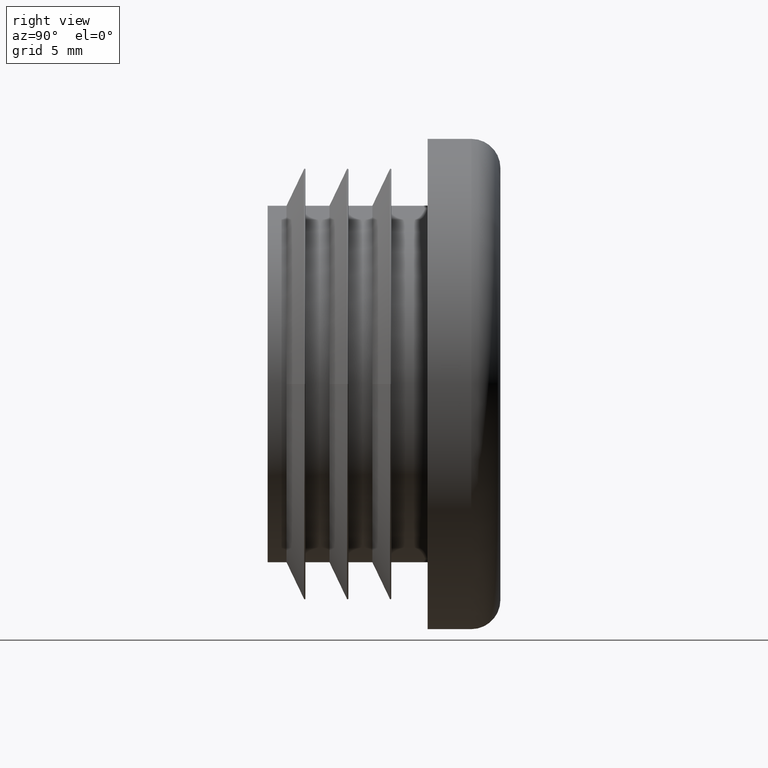
[diagram: clean part render]
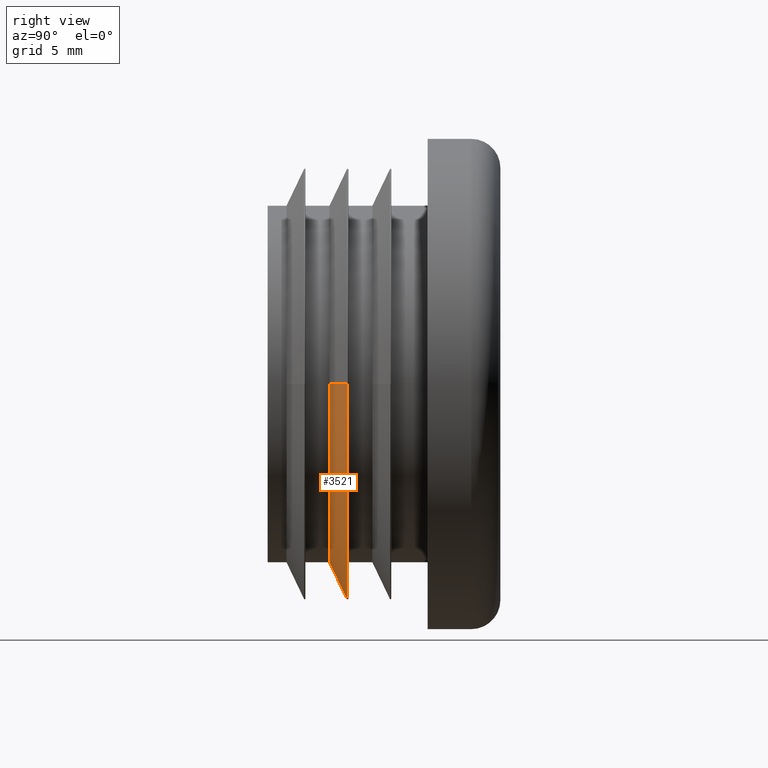
[diagram: same view with one face highlighted and labeled with its STEP entity id]
A machine part, right view. The second image highlights one B-rep face of the part: STEP entity #3521.
In plain terms, the highlighted conical surface has half-angle 64.895 deg.
Its self-contained STEP definition (entity closure, byte-faithful):
#11 = CARTESIAN_POINT ( 'NONE',  ( -12.25000000000004619, 4.249999999999860556, 0.000000000000000000 ) ) ;
#257 = CONICAL_SURFACE ( 'NONE', #10752, 12.25000000000007638, 1.132629769229690941 ) ;
#283 = DIRECTION ( 'NONE',  ( 1.047444401652940164E-14, -1.000000000000000000, -0.000000000000000000 ) ) ;
#577 = LINE ( 'NONE', #7510, #732 ) ;
#732 = VECTOR ( 'NONE', #4391, 1000.000000000000000 ) ;
#1081 = VERTEX_POINT ( 'NONE', #11 ) ;
#1797 = CIRCLE ( 'NONE', #9523, 12.25000000000000000 ) ;
#2584 = VERTEX_POINT ( 'NONE', #9989 ) ;
#2592 = EDGE_CURVE ( 'NONE', #10377, #9614, #13727, .T. ) ;
#2660 = DIRECTION ( 'NONE',  ( -1.047444401652940164E-14, 1.000000000000000000, 0.000000000000000000 ) ) ;
#3021 = ORIENTED_EDGE ( 'NONE', *, *, #10250, .T. ) ;
#3037 = CARTESIAN_POINT ( 'NONE',  ( 12.24999999999995559, 4.250000000000117240, 1.657633778522968580E-15 ) ) ;
#3159 = CARTESIAN_POINT ( 'NONE',  ( -4.451638707025021218E-14, 4.250000000000024869, 0.000000000000000000 ) ) ;
#3521 = ADVANCED_FACE ( 'NONE', ( #4399 ), #257, .T. ) ;
#3866 = ORIENTED_EDGE ( 'NONE', *, *, #13570, .F. ) ;
#4110 = ORIENTED_EDGE ( 'NONE', *, *, #10562, .T. ) ;
#4391 = DIRECTION ( 'NONE',  ( 0.9055310776063628664, 0.4242799400031296853, 1.108955735719091243E-16 ) ) ;
#4399 = FACE_OUTER_BOUND ( 'NONE', #11627, .T. ) ;
#4989 = DIRECTION ( 'NONE',  ( -1.047444401652940164E-14, 1.000000000000000000, 0.000000000000000000 ) ) ;
#6006 = CARTESIAN_POINT ( 'NONE',  ( -4.451638707024983984E-14, 4.249999999999989342, 0.000000000000000000 ) ) ;
#6117 = VECTOR ( 'NONE', #8139, 1000.000000000000000 ) ;
#6250 = DIRECTION ( 'NONE',  ( -1.000000000000000000, -1.047914589569656560E-14, 0.000000000000000000 ) ) ;
#6651 = AXIS2_PLACEMENT_3D ( 'NONE', #13288, #2660, #7807 ) ;
#7277 = CARTESIAN_POINT ( 'NONE',  ( -1.343528729204535731E-27, 4.249999999999989342, -12.25000000000000000 ) ) ;
#7510 = CARTESIAN_POINT ( 'NONE',  ( 12.25000000000003197, 4.250000000000152767, 1.500192328955517003E-15 ) ) ;
#7767 = CIRCLE ( 'NONE', #13602, 14.82121399700024078 ) ;
#7807 = DIRECTION ( 'NONE',  ( -1.000000000000000000, -1.047914589569663029E-14, 0.000000000000000000 ) ) ;
#8139 = DIRECTION ( 'NONE',  ( -0.9055310776063717482, 0.4242799400031107004, 0.000000000000000000 ) ) ;
#8164 = ORIENTED_EDGE ( 'NONE', *, *, #2592, .T. ) ;
#8637 = CARTESIAN_POINT ( 'NONE',  ( -5.713519536203120052E-14, 5.454723446119706942, 0.000000000000000000 ) ) ;
#8669 = EDGE_CURVE ( 'NONE', #9614, #1081, #1797, .T. ) ;
#9113 = DIRECTION ( 'NONE',  ( -1.000000000000000000, -1.047914589569663029E-14, 0.000000000000000000 ) ) ;
#9504 = DIRECTION ( 'NONE',  ( -1.047444401652940164E-14, 1.000000000000000000, 0.000000000000000000 ) ) ;
#9523 = AXIS2_PLACEMENT_3D ( 'NONE', #6006, #4989, #9113 ) ;
#9614 = VERTEX_POINT ( 'NONE', #7277 ) ;
#9761 = LINE ( 'NONE', #10419, #6117 ) ;
#9943 = CARTESIAN_POINT ( 'NONE',  ( 14.82121399700018394, 5.454723446119862373, 1.815075228090429229E-15 ) ) ;
#9989 = CARTESIAN_POINT ( 'NONE',  ( -14.82121399700029762, 5.454723446119551511, 0.000000000000000000 ) ) ;
#10250 = EDGE_CURVE ( 'NONE', #1081, #2584, #9761, .T. ) ;
#10377 = VERTEX_POINT ( 'NONE', #3037 ) ;
#10419 = CARTESIAN_POINT ( 'NONE',  ( -12.25000000000012257, 4.249999999999896083, 0.000000000000000000 ) ) ;
#10562 = EDGE_CURVE ( 'NONE', #2584, #12946, #7767, .T. ) ;
#10752 = AXIS2_PLACEMENT_3D ( 'NONE', #3159, #9504, #6250 ) ;
#11627 = EDGE_LOOP ( 'NONE', ( #3866, #8164, #12522, #3021, #4110 ) ) ;
#12522 = ORIENTED_EDGE ( 'NONE', *, *, #8669, .T. ) ;
#12946 = VERTEX_POINT ( 'NONE', #9943 ) ;
#12964 = DIRECTION ( 'NONE',  ( 1.000000000000000000, 1.047537341619571970E-14, 0.000000000000000000 ) ) ;
#13288 = CARTESIAN_POINT ( 'NONE',  ( -4.451638707024983984E-14, 4.249999999999989342, 0.000000000000000000 ) ) ;
#13570 = EDGE_CURVE ( 'NONE', #10377, #12946, #577, .T. ) ;
#13602 = AXIS2_PLACEMENT_3D ( 'NONE', #8637, #283, #12964 ) ;
#13727 = CIRCLE ( 'NONE', #6651, 12.25000000000000000 ) ;